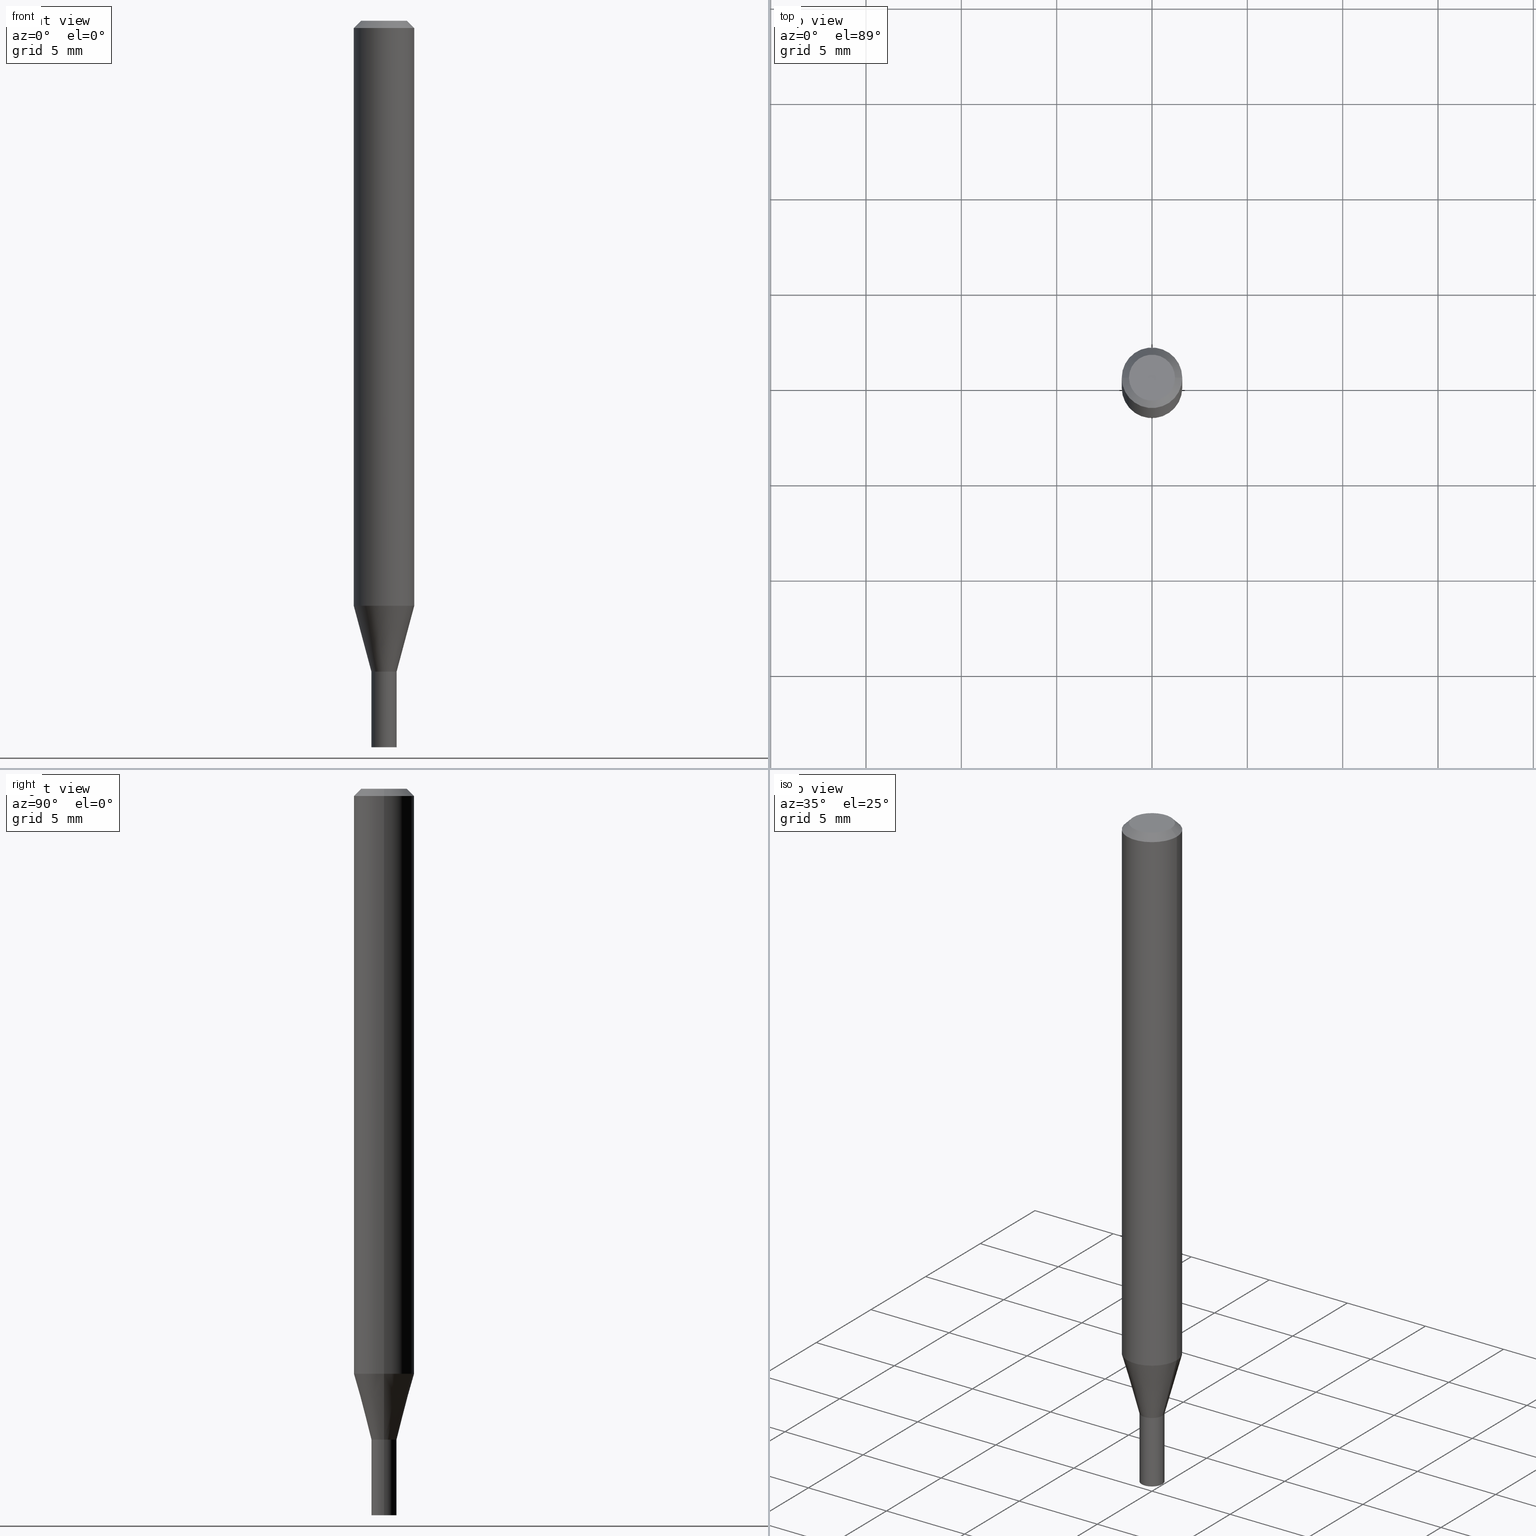
[diagram: canonical four-view strip — front | top / right | iso, engineering-drawing reading convention]
A machine part, canonical four-view strip (front | top / right | iso — engineering-drawing reading convention). The complete STEP part file that produces these views, byte-faithful:
ISO-10303-21;
HEADER;
FILE_DESCRIPTION (( 'STEP AP203' ),
    '1' );
FILE_NAME ('04158.STEP',
    '2024-03-14T17:08:30',
    ( '' ),
    ( '' ),
    'SwSTEP 2.0',
    'SolidWorks 2023',
    '' );
FILE_SCHEMA (( 'CONFIG_CONTROL_DESIGN' ));
ENDSEC;

DATA;
#1 = COORDINATED_UNIVERSAL_TIME_OFFSET ( 5, 0, .BEHIND. ) ;
#2 = LINE ( 'NONE', #234, #319 ) ;
#3 = CC_DESIGN_PERSON_AND_ORGANIZATION_ASSIGNMENT ( #401, #460, ( #240 ) ) ;
#4 = CIRCLE ( 'NONE', #91, 0.06250000000000000000 ) ;
#5 = DIRECTION ( 'NONE',  ( -2.445468806185136597E-29, 3.491481338843145583E-15, 1.000000000000000000 ) ) ;
#6 = UNCERTAINTY_MEASURE_WITH_UNIT (LENGTH_MEASURE( 1.000000000000000082E-05 ), #190, 'distance_accuracy_value', 'NONE');
#7 = FACE_OUTER_BOUND ( 'NONE', #82, .T. ) ;
#8 = EDGE_CURVE ( 'NONE', #414, #31, #24, .T. ) ;
#9 = DIRECTION ( 'NONE',  ( 1.000000000000000000, -6.982962677686279332E-15, 0.000000000000000000 ) ) ;
#10 = CIRCLE ( 'NONE', #270, 0.02549999999999999489 ) ;
#11 = CARTESIAN_POINT ( 'NONE',  ( 3.668203209277704895E-29, -5.237222008264718177E-15, -1.500000000000000222 ) ) ;
#12 = FACE_OUTER_BOUND ( 'NONE', #411, .T. ) ;
#13 = ORIENTED_EDGE ( 'NONE', *, *, #192, .T. ) ;
#14 = PRODUCT_RELATED_PRODUCT_CATEGORY ( 'detail', '', ( #160 ) ) ;
#15 = CARTESIAN_POINT ( 'NONE',  ( -0.02549999999999999489, -4.508713294612250460E-15, -1.343999999999999861 ) ) ;
#16 = ORIENTED_EDGE ( 'NONE', *, *, #218, .F. ) ;
#17 = ORIENTED_EDGE ( 'NONE', *, *, #107, .F. ) ;
#18 = AXIS2_PLACEMENT_3D ( 'NONE', #391, #312, #449 ) ;
#19 = EDGE_CURVE ( 'NONE', #162, #98, #398, .T. ) ;
#20 = DIRECTION ( 'NONE',  ( -0.7071067811869518049, 7.493145998871813553E-15, 0.7071067811861430075 ) ) ;
#21 = FACE_OUTER_BOUND ( 'NONE', #274, .T. ) ;
#22 = EDGE_CURVE ( 'NONE', #378, #51, #221, .T. ) ;
#23 = VECTOR ( 'NONE', #266, 39.37007874015748143 ) ;
#24 = LINE ( 'NONE', #280, #61 ) ;
#25 = APPROVAL_PERSON_ORGANIZATION ( #187, #134, #110 ) ;
#26 = ORIENTED_EDGE ( 'NONE', *, *, #141, .F. ) ;
#27 = DIRECTION ( 'NONE',  ( -2.445468806185136877E-29, 3.491481338843145188E-15, 1.000000000000000000 ) ) ;
#28 = ORIENTED_EDGE ( 'NONE', *, *, #351, .T. ) ;
#29 = CARTESIAN_POINT ( 'NONE',  ( 0.06250000000000000000, -4.888073874380388472E-16, -0.01499999999999999944 ) ) ;
#30 = APPLICATION_PROTOCOL_DEFINITION ( 'international standard', 'config_control_design', 1994, #237 ) ;
#31 = VERTEX_POINT ( 'NONE', #29 ) ;
#32 = ADVANCED_FACE ( 'NONE', ( #174 ), #242, .F. ) ;
#33 = AXIS2_PLACEMENT_3D ( 'NONE', #292, #150, #125 ) ;
#34 = EDGE_CURVE ( 'NONE', #122, #281, #92, .T. ) ;
#35 = CARTESIAN_POINT ( 'NONE',  ( 2.953588670608038575E-29, -4.216941839521379856E-15, -1.207780145523734916 ) ) ;
#36 = MANIFOLD_SOLID_BREP ( 'Body-Move/Copy2[2]', #462 ) ;
#37 = APPROVAL_ROLE ( '' ) ;
#38 = PERSON_AND_ORGANIZATION ( #435, #399 ) ;
#39 = CONICAL_SURFACE ( 'NONE', #143, 0.02549999999999999489, 0.7853981633980202659 ) ;
#40 = DIRECTION ( 'NONE',  ( 1.000000000000000000, -6.982962677686258822E-15, 0.000000000000000000 ) ) ;
#41 = CARTESIAN_POINT ( 'NONE',  ( 0.06250000000000000000, -4.811533449433679005E-16, -0.01499999999999999944 ) ) ;
#42 = EDGE_CURVE ( 'NONE', #375, #243, #363, .T. ) ;
#43 = DESIGN_CONTEXT ( 'detailed design', #53, 'design' ) ;
#44 = CARTESIAN_POINT ( 'NONE',  ( 3.668203209277704895E-29, -5.237222008264718177E-15, -1.500000000000000222 ) ) ;
#45 = CARTESIAN_POINT ( 'NONE',  ( 0.02599999999999999534, -5.418779037884561648E-15, -1.500000000000000222 ) ) ;
#46 = EDGE_LOOP ( 'NONE', ( #86, #97, #441, #410 ) ) ;
#47 = AXIS2_PLACEMENT_3D ( 'NONE', #376, #181, #397 ) ;
#48 = CYLINDRICAL_SURFACE ( 'NONE', #47, 0.06250000000000000000 ) ;
#49 = AXIS2_PLACEMENT_3D ( 'NONE', #294, #79, #50 ) ;
#50 = DIRECTION ( 'NONE',  ( 1.000000000000000000, -6.982962677686276966E-15, 0.000000000000000000 ) ) ;
#51 = VERTEX_POINT ( 'NONE', #358 ) ;
#52 = ORIENTED_EDGE ( 'NONE', *, *, #34, .F. ) ;
#53 = APPLICATION_CONTEXT ( 'configuration controlled 3d designs of mechanical parts and assemblies' ) ;
#54 = EDGE_CURVE ( 'NONE', #122, #443, #72, .T. ) ;
#55 = AXIS2_PLACEMENT_3D ( 'NONE', #11, #226, #341 ) ;
#56 = AXIS2_PLACEMENT_3D ( 'NONE', #339, #362, #9 ) ;
#57 = ADVANCED_FACE ( 'NONE', ( #131 ), #348, .T. ) ;
#58 = DIRECTION ( 'NONE',  ( -2.445468806185136597E-29, 3.491481338843145583E-15, 1.000000000000000000 ) ) ;
#59 = CARTESIAN_POINT ( 'NONE',  ( 3.285487341109732022E-29, -4.690805178735767049E-15, -1.343500000000000361 ) ) ;
#60 = ORIENTED_EDGE ( 'NONE', *, *, #416, .F. ) ;
#61 = VECTOR ( 'NONE', #27, 39.37007874015748143 ) ;
#62 = ORIENTED_EDGE ( 'NONE', *, *, #19, .F. ) ;
#63 = ORIENTED_EDGE ( 'NONE', *, *, #141, .T. ) ;
#64 = SECURITY_CLASSIFICATION_LEVEL ( 'unclassified' ) ;
#65 = DIRECTION ( 'NONE',  ( -1.000000000000000000, 6.982962677686265922E-15, -4.876176775795935793E-29 ) ) ;
#66 = DIRECTION ( 'NONE',  ( 2.445468806185136597E-29, -3.491481338843145583E-15, -1.000000000000000000 ) ) ;
#67 = SHAPE_DEFINITION_REPRESENTATION ( #124, #211 ) ;
#68 = ORIENTED_EDGE ( 'NONE', *, *, #456, .F. ) ;
#69 = APPROVAL_DATE_TIME ( #390, #134 ) ;
#70 = CC_DESIGN_PERSON_AND_ORGANIZATION_ASSIGNMENT ( #38, #320, ( #84 ) ) ;
#71 = DIRECTION ( 'NONE',  ( -2.445468806185136597E-29, 3.491481338843145583E-15, 1.000000000000000000 ) ) ;
#72 = CIRCLE ( 'NONE', #18, 0.02549999999999999489 ) ;
#73 = CONICAL_SURFACE ( 'NONE', #56, 0.02599999999999964145, 0.2617993877991496854 ) ;
#74 = APPROVAL_DATE_TIME ( #422, #370 ) ;
#75 = LINE ( 'NONE', #41, #374 ) ;
#76 = CARTESIAN_POINT ( 'NONE',  ( -0.02599999999999964145, -4.140331218889440579E-15, -1.344000000000000306 ) ) ;
#77 = AXIS2_PLACEMENT_3D ( 'NONE', #130, #93, #349 ) ;
#78 = DIRECTION ( 'NONE',  ( 1.000000000000000000, -6.982962677686265922E-15, 4.876176775795935793E-29 ) ) ;
#79 = DIRECTION ( 'NONE',  ( -2.445468806185136597E-29, 3.491481338843145583E-15, 1.000000000000000000 ) ) ;
#80 = DIRECTION ( 'NONE',  ( 1.000000000000000000, -6.982962677686280910E-15, 0.000000000000000000 ) ) ;
#81 = DIRECTION ( 'NONE',  ( -2.438088387897960049E-29, 3.491481338843145188E-15, 1.000000000000000000 ) ) ;
#82 = EDGE_LOOP ( 'NONE', ( #420, #445, #241, #106 ) ) ;
#83 = DIRECTION ( 'NONE',  ( 1.000000000000000000, -6.982962677686266711E-15, 0.000000000000000000 ) ) ;
#84 = PRODUCT_DEFINITION ( 'UNKNOWN', '', #240, #43 ) ;
#85 = DIRECTION ( 'NONE',  ( -1.000000000000000000, 6.982962677686266711E-15, 0.000000000000000000 ) ) ;
#86 = ORIENTED_EDGE ( 'NONE', *, *, #293, .F. ) ;
#87 = DIRECTION ( 'NONE',  ( -2.445468806185136597E-29, 3.491481338843145583E-15, 1.000000000000000000 ) ) ;
#88 = CC_DESIGN_APPROVAL ( #134, ( #231 ) ) ;
#89 = ORIENTED_EDGE ( 'NONE', *, *, #351, .F. ) ;
#90 = AXIS2_PLACEMENT_3D ( 'NONE', #276, #94, #65 ) ;
#91 = AXIS2_PLACEMENT_3D ( 'NONE', #161, #232, #302 ) ;
#92 = LINE ( 'NONE', #381, #413 ) ;
#93 = DIRECTION ( 'NONE',  ( -2.445468806185136597E-29, 3.491481338843145583E-15, 1.000000000000000000 ) ) ;
#94 = DIRECTION ( 'NONE',  ( 2.438088387897960049E-29, -3.491481338843145188E-15, -1.000000000000000000 ) ) ;
#95 = ORIENTED_EDGE ( 'NONE', *, *, #118, .F. ) ;
#96 = ADVANCED_FACE ( 'NONE', ( #21 ), #168, .F. ) ;
#97 = ORIENTED_EDGE ( 'NONE', *, *, #107, .T. ) ;
#98 = VERTEX_POINT ( 'NONE', #318 ) ;
#99 = CARTESIAN_POINT ( 'NONE',  ( -0.02599999999999999534, 1.847411112976260152E-16, -1.278923123466275386E-30 ) ) ;
#100 = APPROVAL_STATUS ( 'not_yet_approved' ) ;
#101 = AXIS2_PLACEMENT_3D ( 'NONE', #418, #58, #200 ) ;
#102 = DIRECTION ( 'NONE',  ( 0.7071067811869518049, -2.468850131086492060E-15, 0.7071067811861430075 ) ) ;
#103 = CC_DESIGN_APPROVAL ( #370, ( #240 ) ) ;
#104 = ORIENTED_EDGE ( 'NONE', *, *, #19, .T. ) ;
#105 = PERSON_AND_ORGANIZATION_ROLE ( 'design_owner' ) ;
#106 = ORIENTED_EDGE ( 'NONE', *, *, #22, .F. ) ;
#107 = EDGE_CURVE ( 'NONE', #443, #122, #10, .T. ) ;
#108 = COORDINATED_UNIVERSAL_TIME_OFFSET ( 5, 0, .BEHIND. ) ;
#109 = DIRECTION ( 'NONE',  ( 1.000000000000000000, -6.982962677686270655E-15, 0.000000000000000000 ) ) ;
#110 = APPROVAL_ROLE ( '' ) ;
#111 = CARTESIAN_POINT ( 'NONE',  ( 3.286710075512824263E-29, -4.692550919405188553E-15, -1.344000000000000306 ) ) ;
#112 = AXIS2_PLACEMENT_3D ( 'NONE', #35, #71, #109 ) ;
#113 = CONICAL_SURFACE ( 'NONE', #49, 0.02549999999999999489, 0.7853981633980202659 ) ;
#114 =( LENGTH_UNIT ( ) NAMED_UNIT ( * ) SI_UNIT ( $, .METRE. ) );
#115 = CIRCLE ( 'NONE', #290, 0.04749999999999999362 ) ;
#116 = AXIS2_PLACEMENT_3D ( 'NONE', #201, #132, #417 ) ;
#117 =( NAMED_UNIT ( * ) PLANE_ANGLE_UNIT ( ) SI_UNIT ( $, .RADIAN. ) );
#118 = EDGE_CURVE ( 'NONE', #343, #206, #419, .T. ) ;
#119 = DIRECTION ( 'NONE',  ( -2.445468806185136597E-29, 3.491481338843145583E-15, 1.000000000000000000 ) ) ;
#120 = EDGE_CURVE ( 'NONE', #281, #407, #387, .T. ) ;
#121 = LINE ( 'NONE', #263, #180 ) ;
#122 = VERTEX_POINT ( 'NONE', #466 ) ;
#123 = DIRECTION ( 'NONE',  ( 1.000000000000000000, -6.982962677686279332E-15, 0.000000000000000000 ) ) ;
#124 = PRODUCT_DEFINITION_SHAPE ( 'NONE', 'NONE',  #84 ) ;
#125 = DIRECTION ( 'NONE',  ( 1.000000000000000000, -6.982962677686279332E-15, 0.000000000000000000 ) ) ;
#126 = DIRECTION ( 'NONE',  ( 1.000000000000000000, -6.982962677686267499E-15, 4.852736867747366768E-29 ) ) ;
#127 = EDGE_LOOP ( 'NONE', ( #159, #197, #251, #303 ) ) ;
#128 = VERTEX_POINT ( 'NONE', #145 ) ;
#129 = ADVANCED_FACE ( 'NONE', ( #7 ), #335, .T. ) ;
#130 = CARTESIAN_POINT ( 'NONE',  ( 3.286710075512824263E-29, -4.692550919405188553E-15, -1.344000000000000306 ) ) ;
#131 = FACE_OUTER_BOUND ( 'NONE', #127, .T. ) ;
#132 = DIRECTION ( 'NONE',  ( 2.438088387897960049E-29, -3.491481338843145188E-15, -1.000000000000000000 ) ) ;
#133 = CARTESIAN_POINT ( 'NONE',  ( 3.286710075512824263E-29, -4.692550919405188553E-15, -1.344000000000000306 ) ) ;
#134 = APPROVAL ( #100, 'UNSPECIFIED' ) ;
#135 = DIRECTION ( 'NONE',  ( -2.445468806185136597E-29, 3.491481338843145583E-15, 1.000000000000000000 ) ) ;
#136 = VERTEX_POINT ( 'NONE', #45 ) ;
#137 = DIRECTION ( 'NONE',  ( -2.445468806185136877E-29, 3.491481338843145188E-15, 1.000000000000000000 ) ) ;
#138 = ORIENTED_EDGE ( 'NONE', *, *, #120, .F. ) ;
#139 = ORIENTED_EDGE ( 'NONE', *, *, #54, .T. ) ;
#140 = CALENDAR_DATE ( 2024, 14, 3 ) ;
#141 = EDGE_CURVE ( 'NONE', #98, #206, #432, .T. ) ;
#142 = CARTESIAN_POINT ( 'NONE',  ( -0.06250000000000000000, 4.440892098500626162E-16, -3.074334431409316114E-30 ) ) ;
#143 = AXIS2_PLACEMENT_3D ( 'NONE', #330, #158, #225 ) ;
#144 = APPROVAL_DATE_TIME ( #183, #153 ) ;
#145 = CARTESIAN_POINT ( 'NONE',  ( -0.02599999999999999534, -4.780145352537327941E-15, -1.500000000000000222 ) ) ;
#146 = PERSON_AND_ORGANIZATION ( #435, #399 ) ;
#147 = FACE_OUTER_BOUND ( 'NONE', #229, .T. ) ;
#148 = AXIS2_PLACEMENT_3D ( 'NONE', #171, #202, #214 ) ;
#149 = MECHANICAL_CONTEXT ( 'NONE', #237, 'mechanical' ) ;
#150 = DIRECTION ( 'NONE',  ( -2.445468806185136597E-29, 3.491481338843145583E-15, 1.000000000000000000 ) ) ;
#151 = CARTESIAN_POINT ( 'NONE',  ( -0.02600000000000019310, -4.506064067438139259E-15, -1.343500000000000361 ) ) ;
#152 = DIRECTION ( 'NONE',  ( 1.000000000000000000, -6.982962677686266711E-15, 4.876176775795935793E-29 ) ) ;
#153 = APPROVAL ( #209, 'UNSPECIFIED' ) ;
#154 = AXIS2_PLACEMENT_3D ( 'NONE', #423, #356, #277 ) ;
#155 = VECTOR ( 'NONE', #137, 39.37007874015748143 ) ;
#156 = CYLINDRICAL_SURFACE ( 'NONE', #379, 0.02599999999999991554 ) ;
#157 = CARTESIAN_POINT ( 'NONE',  ( -3.597438323505677396E-45, 5.136188506020282969E-31, 1.471062854863228050E-16 ) ) ;
#158 = DIRECTION ( 'NONE',  ( -2.445468806185136597E-29, 3.491481338843145583E-15, 1.000000000000000000 ) ) ;
#159 = ORIENTED_EDGE ( 'NONE', *, *, #456, .T. ) ;
#160 = PRODUCT ( '04158', '04158', '', ( #149 ) ) ;
#161 = CARTESIAN_POINT ( 'NONE',  ( 2.953588670608038575E-29, -4.216941839521379856E-15, -1.207780145523734916 ) ) ;
#162 = VERTEX_POINT ( 'NONE', #361 ) ;
#163 = DIMENSIONAL_EXPONENTS ( 1.000000000000000000, 0.000000000000000000, 0.000000000000000000, 0.000000000000000000, 0.000000000000000000, 0.000000000000000000, 0.000000000000000000 ) ;
#164 = ORIENTED_EDGE ( 'NONE', *, *, #337, .T. ) ;
#165 = CIRCLE ( 'NONE', #311, 0.02599999999999999534 ) ;
#166 = DIRECTION ( 'NONE',  ( -2.445468806185136597E-29, 3.491481338843145583E-15, 1.000000000000000000 ) ) ;
#167 = FACE_OUTER_BOUND ( 'NONE', #175, .T. ) ;
#168 = PLANE ( 'NONE',  #90 ) ;
#169 = EDGE_CURVE ( 'NONE', #128, #136, #256, .T. ) ;
#170 = CARTESIAN_POINT ( 'NONE',  ( -0.02549999999999999489, -4.511362521786361661E-15, -1.343999999999999861 ) ) ;
#171 = CARTESIAN_POINT ( 'NONE',  ( 3.576687321579069994E-29, -5.368277968210015545E-15, -1.500000000000000222 ) ) ;
#172 = ORIENTED_EDGE ( 'NONE', *, *, #8, .T. ) ;
#173 = CARTESIAN_POINT ( 'NONE',  ( 3.668203209277705088E-31, -5.237222008264718399E-17, -0.01499999999999999944 ) ) ;
#174 = FACE_OUTER_BOUND ( 'NONE', #313, .T. ) ;
#175 = EDGE_LOOP ( 'NONE', ( #164, #372 ) ) ;
#176 = PERSON_AND_ORGANIZATION_ROLE ( 'classification_officer' ) ;
#177 = CC_DESIGN_DATE_AND_TIME_ASSIGNMENT ( #426, #282, ( #84 ) ) ;
#178 = DIRECTION ( 'NONE',  ( 1.000000000000000000, -6.982962677686279332E-15, 0.000000000000000000 ) ) ;
#179 = APPLICATION_PROTOCOL_DEFINITION ( 'international standard', 'config_control_design', 1994, #53 ) ;
#180 = VECTOR ( 'NONE', #334, 39.37007874015748143 ) ;
#181 = DIRECTION ( 'NONE',  ( -2.445468806185136597E-29, 3.491481338843145583E-15, 1.000000000000000000 ) ) ;
#182 = EDGE_CURVE ( 'NONE', #98, #162, #115, .T. ) ;
#183 = DATE_AND_TIME ( #357, #322 ) ;
#184 = DIRECTION ( 'NONE',  ( 1.000000000000000000, -6.982962677686267499E-15, 4.876176775795935793E-29 ) ) ;
#185 = DIRECTION ( 'NONE',  ( 0.000000000000000000, 0.000000000000000000, 1.000000000000000000 ) ) ;
#186 = ADVANCED_FACE ( 'NONE', ( #444 ), #204, .T. ) ;
#187 = PERSON_AND_ORGANIZATION ( #435, #399 ) ;
#188 = DIRECTION ( 'NONE',  ( -2.445468806185136597E-29, 3.491481338843145583E-15, 1.000000000000000000 ) ) ;
#189 = EDGE_CURVE ( 'NONE', #243, #281, #230, .T. ) ;
#190 =( CONVERSION_BASED_UNIT ( 'INCH', #440 ) LENGTH_UNIT ( ) NAMED_UNIT ( #163 ) );
#191 = DIRECTION ( 'NONE',  ( -2.445468806185136597E-29, 3.491481338843145583E-15, 1.000000000000000000 ) ) ;
#192 = EDGE_CURVE ( 'NONE', #31, #206, #321, .T. ) ;
#193 = AXIS2_PLACEMENT_3D ( 'NONE', #430, #253, #400 ) ;
#194 = CARTESIAN_POINT ( 'NONE',  ( 0.000000000000000000, 0.000000000000000000, 0.000000000000000000 ) ) ;
#195 = ORIENTED_EDGE ( 'NONE', *, *, #189, .T. ) ;
#196 = CARTESIAN_POINT ( 'NONE',  ( 3.286710075512824263E-29, -4.692550919405188553E-15, -1.344000000000000306 ) ) ;
#197 = ORIENTED_EDGE ( 'NONE', *, *, #118, .T. ) ;
#198 = APPROVAL_PERSON_ORGANIZATION ( #258, #153, #37 ) ;
#199 = EDGE_CURVE ( 'NONE', #136, #51, #2, .T. ) ;
#200 = DIRECTION ( 'NONE',  ( 1.000000000000000000, -6.982962677686266711E-15, 4.876176775795935793E-29 ) ) ;
#201 = CARTESIAN_POINT ( 'NONE',  ( 1.815570296198757649E-16, 0.02599999999999530464, -1.344000000000000306 ) ) ;
#202 = DIRECTION ( 'NONE',  ( -2.438088387897960049E-29, 3.491481338843145188E-15, 1.000000000000000000 ) ) ;
#203 = EDGE_LOOP ( 'NONE', ( #139, #233, #138, #52 ) ) ;
#204 = CONICAL_SURFACE ( 'NONE', #215, 0.02599999999999964145, 0.2617993877991496854 ) ;
#205 = AXIS2_PLACEMENT_3D ( 'NONE', #235, #166, #347 ) ;
#206 = VERTEX_POINT ( 'NONE', #438 ) ;
#207 = ORIENTED_EDGE ( 'NONE', *, *, #287, .T. ) ;
#208 = LINE ( 'NONE', #170, #415 ) ;
#209 = APPROVAL_STATUS ( 'not_yet_approved' ) ;
#210 = ORIENTED_EDGE ( 'NONE', *, *, #416, .T. ) ;
#211 = ADVANCED_BREP_SHAPE_REPRESENTATION ( '04158', ( #333, #36, #360 ), #447 ) ;
#212 = APPROVAL_ROLE ( '' ) ;
#213 = ADVANCED_FACE ( 'NONE', ( #147 ), #48, .T. ) ;
#214 = DIRECTION ( 'NONE',  ( 1.000000000000000000, -6.982962677686265922E-15, 4.876176775795935793E-29 ) ) ;
#215 = AXIS2_PLACEMENT_3D ( 'NONE', #111, #442, #123 ) ;
#216 = CIRCLE ( 'NONE', #205, 0.06250000000000000000 ) ;
#217 = CARTESIAN_POINT ( 'NONE',  ( 0.02599999999999964145, -4.874107949025028868E-15, -1.344000000000000306 ) ) ;
#218 = EDGE_CURVE ( 'NONE', #343, #414, #310, .T. ) ;
#219 = DIRECTION ( 'NONE',  ( 0.7071067811865441310, -7.319954787623245001E-15, -0.7071067811865509034 ) ) ;
#220 = FACE_OUTER_BOUND ( 'NONE', #452, .T. ) ;
#221 = CIRCLE ( 'NONE', #154, 0.02599999999999999534 ) ;
#222 = CONICAL_SURFACE ( 'NONE', #329, 0.06250000000000000000, 0.7853981633974435050 ) ;
#223 = CC_DESIGN_PERSON_AND_ORGANIZATION_ASSIGNMENT ( #317, #176, ( #231 ) ) ;
#224 = DIRECTION ( 'NONE',  ( 1.000000000000000000, -6.982962677686266711E-15, 4.876176775795935793E-29 ) ) ;
#225 = DIRECTION ( 'NONE',  ( 1.000000000000000000, -6.982962677686276966E-15, 0.000000000000000000 ) ) ;
#226 = DIRECTION ( 'NONE',  ( -2.445468806185136597E-29, 3.491481338843145583E-15, 1.000000000000000000 ) ) ;
#227 = ADVANCED_FACE ( 'NONE', ( #289 ), #405, .F. ) ;
#228 = PLANE ( 'NONE',  #453 ) ;
#229 = EDGE_LOOP ( 'NONE', ( #95, #268, #172, #384 ) ) ;
#230 = LINE ( 'NONE', #286, #23 ) ;
#231 = SECURITY_CLASSIFICATION ( '', '', #64 ) ;
#232 = DIRECTION ( 'NONE',  ( -2.445468806185136597E-29, 3.491481338843145583E-15, 1.000000000000000000 ) ) ;
#233 = ORIENTED_EDGE ( 'NONE', *, *, #293, .T. ) ;
#234 = CARTESIAN_POINT ( 'NONE',  ( 0.02599999999999999534, -1.815570296198429286E-16, 1.267805961706943054E-30 ) ) ;
#235 = CARTESIAN_POINT ( 'NONE',  ( 3.668203209277705088E-31, -5.237222008264718399E-17, -0.01499999999999999944 ) ) ;
#236 = EDGE_LOOP ( 'NONE', ( #273, #245, #345, #385 ) ) ;
#237 = APPLICATION_CONTEXT ( 'configuration controlled 3d designs of mechanical parts and assemblies' ) ;
#238 = AXIS2_PLACEMENT_3D ( 'NONE', #257, #119, #152 ) ;
#239 = ADVANCED_FACE ( 'NONE', ( #295 ), #324, .T. ) ;
#240 = PRODUCT_DEFINITION_FORMATION_WITH_SPECIFIED_SOURCE ( 'ANY', '', #160, .NOT_KNOWN. ) ;
#241 = ORIENTED_EDGE ( 'NONE', *, *, #199, .T. ) ;
#242 = PLANE ( 'NONE',  #148 ) ;
#243 = VERTEX_POINT ( 'NONE', #217 ) ;
#244 = CARTESIAN_POINT ( 'NONE',  ( -3.597438323505677396E-45, 5.136188506020282969E-31, 1.471062854863228050E-16 ) ) ;
#245 = ORIENTED_EDGE ( 'NONE', *, *, #275, .T. ) ;
#246 = FACE_OUTER_BOUND ( 'NONE', #396, .T. ) ;
#247 = AXIS2_PLACEMENT_3D ( 'NONE', #59, #350, #80 ) ;
#248 = AXIS2_PLACEMENT_3D ( 'NONE', #366, #188, #332 ) ;
#249 = DIRECTION ( 'NONE',  ( -2.445468806185136597E-29, 3.491481338843145583E-15, 1.000000000000000000 ) ) ;
#250 = COORDINATED_UNIVERSAL_TIME_OFFSET ( 5, 0, .BEHIND. ) ;
#251 = ORIENTED_EDGE ( 'NONE', *, *, #192, .F. ) ;
#252 = CARTESIAN_POINT ( 'NONE',  ( 0.000000000000000000, 0.000000000000000000, 0.000000000000000000 ) ) ;
#253 = DIRECTION ( 'NONE',  ( -2.445468806185136597E-29, 3.491481338843145583E-15, 1.000000000000000000 ) ) ;
#254 = CALENDAR_DATE ( 2024, 14, 3 ) ;
#255 = EDGE_CURVE ( 'NONE', #162, #31, #75, .T. ) ;
#256 = CIRCLE ( 'NONE', #55, 0.02599999999999999534 ) ;
#257 = CARTESIAN_POINT ( 'NONE',  ( 0.000000000000000000, 0.000000000000000000, 0.000000000000000000 ) ) ;
#258 = PERSON_AND_ORGANIZATION ( #435, #399 ) ;
#259 = CC_DESIGN_PERSON_AND_ORGANIZATION_ASSIGNMENT ( #146, #105, ( #160 ) ) ;
#260 = VECTOR ( 'NONE', #326, 39.37007874015748143 ) ;
#261 = LOCAL_TIME ( 13, 8, 30.00000000000000000, #250 ) ;
#262 = EDGE_CURVE ( 'NONE', #407, #281, #380, .T. ) ;
#263 = CARTESIAN_POINT ( 'NONE',  ( -0.02599999999999964145, -4.507809808107564707E-15, -1.344000000000000306 ) ) ;
#264 =( NAMED_UNIT ( * ) SI_UNIT ( $, .STERADIAN. ) SOLID_ANGLE_UNIT ( ) );
#265 = ORIENTED_EDGE ( 'NONE', *, *, #337, .F. ) ;
#266 = DIRECTION ( 'NONE',  ( -2.445468806185136877E-29, 3.491481338843145188E-15, 1.000000000000000000 ) ) ;
#267 = DIRECTION ( 'NONE',  ( 2.445468806185136597E-29, -3.491481338843145583E-15, -1.000000000000000000 ) ) ;
#268 = ORIENTED_EDGE ( 'NONE', *, *, #218, .T. ) ;
#269 = ADVANCED_FACE ( 'NONE', ( #246 ), #222, .T. ) ;
#270 = AXIS2_PLACEMENT_3D ( 'NONE', #461, #383, #427 ) ;
#271 = LINE ( 'NONE', #297, #296 ) ;
#272 = ORIENTED_EDGE ( 'NONE', *, *, #344, .F. ) ;
#273 = ORIENTED_EDGE ( 'NONE', *, *, #42, .F. ) ;
#274 = EDGE_LOOP ( 'NONE', ( #459, #104 ) ) ;
#275 = EDGE_CURVE ( 'NONE', #375, #407, #464, .T. ) ;
#276 = CARTESIAN_POINT ( 'NONE',  ( 3.316907271900976096E-16, 0.04749999999999999362, -9.229222085188799396E-17 ) ) ;
#277 = DIRECTION ( 'NONE',  ( 1.000000000000000000, -6.982962677686258822E-15, 0.000000000000000000 ) ) ;
#278 = EDGE_LOOP ( 'NONE', ( #393, #17 ) ) ;
#279 = CARTESIAN_POINT ( 'NONE',  ( 0.02600000000000019310, -4.872362208355612098E-15, -1.343500000000000361 ) ) ;
#280 = CARTESIAN_POINT ( 'NONE',  ( 0.06250000000000000000, -4.364351673553916694E-16, 3.047610484872459871E-30 ) ) ;
#281 = VERTEX_POINT ( 'NONE', #279 ) ;
#282 = DATE_TIME_ROLE ( 'creation_date' ) ;
#283 = AXIS2_PLACEMENT_3D ( 'NONE', #368, #267, #85 ) ;
#284 = DIRECTION ( 'NONE',  ( -2.445468806185136877E-29, 3.491481338843145188E-15, 1.000000000000000000 ) ) ;
#285 = COORDINATED_UNIVERSAL_TIME_OFFSET ( 5, 0, .BEHIND. ) ;
#286 = CARTESIAN_POINT ( 'NONE',  ( 0.02599999999999991554, -1.815570296198423369E-16, 1.267805961706939200E-30 ) ) ;
#287 = EDGE_CURVE ( 'NONE', #128, #378, #421, .T. ) ;
#288 = PERSON_AND_ORGANIZATION ( #435, #399 ) ;
#289 = FACE_OUTER_BOUND ( 'NONE', #236, .T. ) ;
#290 = AXIS2_PLACEMENT_3D ( 'NONE', #157, #298, #126 ) ;
#291 = LOCAL_TIME ( 13, 8, 30.00000000000000000, #285 ) ;
#292 = CARTESIAN_POINT ( 'NONE',  ( 3.286710075512824263E-29, -4.692550919405188553E-15, -1.344000000000000306 ) ) ;
#293 = EDGE_CURVE ( 'NONE', #443, #407, #208, .T. ) ;
#294 = CARTESIAN_POINT ( 'NONE',  ( 3.286710075512823703E-29, -4.692550919405187764E-15, -1.343999999999999861 ) ) ;
#295 = FACE_OUTER_BOUND ( 'NONE', #424, .T. ) ;
#296 = VECTOR ( 'NONE', #331, 39.37007874015748143 ) ;
#297 = CARTESIAN_POINT ( 'NONE',  ( 0.02599999999999964145, -4.874107949025028868E-15, -1.344000000000000306 ) ) ;
#298 = DIRECTION ( 'NONE',  ( -2.445468806185136597E-29, 3.491481338843145583E-15, 1.000000000000000000 ) ) ;
#299 = CC_DESIGN_DATE_AND_TIME_ASSIGNMENT ( #392, #394, ( #231 ) ) ;
#300 = FACE_OUTER_BOUND ( 'NONE', #46, .T. ) ;
#301 = CARTESIAN_POINT ( 'NONE',  ( 0.000000000000000000, 0.000000000000000000, 0.000000000000000000 ) ) ;
#302 = DIRECTION ( 'NONE',  ( 1.000000000000000000, -6.982962677686270655E-15, 0.000000000000000000 ) ) ;
#303 = ORIENTED_EDGE ( 'NONE', *, *, #8, .F. ) ;
#304 = LOCAL_TIME ( 13, 8, 30.00000000000000000, #327 ) ;
#305 = ORIENTED_EDGE ( 'NONE', *, *, #255, .F. ) ;
#306 = ORIENTED_EDGE ( 'NONE', *, *, #182, .F. ) ;
#307 = EDGE_CURVE ( 'NONE', #206, #31, #216, .T. ) ;
#308 = PLANE ( 'NONE',  #116 ) ;
#309 = EDGE_LOOP ( 'NONE', ( #315, #60, #195, #406 ) ) ;
#310 = CIRCLE ( 'NONE', #112, 0.06250000000000000000 ) ;
#311 = AXIS2_PLACEMENT_3D ( 'NONE', #44, #5, #40 ) ;
#312 = DIRECTION ( 'NONE',  ( -2.445468806185136597E-29, 3.491481338843145583E-15, 1.000000000000000000 ) ) ;
#313 = EDGE_LOOP ( 'NONE', ( #412, #386 ) ) ;
#314 = DIRECTION ( 'NONE',  ( -1.000000000000000000, 6.982962677686266711E-15, 0.000000000000000000 ) ) ;
#315 = ORIENTED_EDGE ( 'NONE', *, *, #275, .F. ) ;
#316 = ORIENTED_EDGE ( 'NONE', *, *, #403, .T. ) ;
#317 = PERSON_AND_ORGANIZATION ( #435, #399 ) ;
#318 = CARTESIAN_POINT ( 'NONE',  ( -0.04749999999999999362, 3.578768372314212971E-16, 1.471062854863204137E-16 ) ) ;
#319 = VECTOR ( 'NONE', #373, 39.37007874015748143 ) ;
#320 = PERSON_AND_ORGANIZATION_ROLE ( 'creator' ) ;
#321 = CIRCLE ( 'NONE', #336, 0.06250000000000000000 ) ;
#322 = LOCAL_TIME ( 13, 8, 30.00000000000000000, #108 ) ;
#323 = ADVANCED_FACE ( 'NONE', ( #167 ), #308, .F. ) ;
#324 = CYLINDRICAL_SURFACE ( 'NONE', #193, 0.02599999999999999534 ) ;
#325 = APPROVAL_STATUS ( 'not_yet_approved' ) ;
#326 = DIRECTION ( 'NONE',  ( -0.7071067811865441310, 2.468850131082221167E-15, -0.7071067811865509034 ) ) ;
#327 = COORDINATED_UNIVERSAL_TIME_OFFSET ( 5, 0, .BEHIND. ) ;
#328 = VECTOR ( 'NONE', #284, 39.37007874015748143 ) ;
#329 = AXIS2_PLACEMENT_3D ( 'NONE', #173, #66, #314 ) ;
#330 = CARTESIAN_POINT ( 'NONE',  ( 3.286710075512823703E-29, -4.692550919405187764E-15, -1.343999999999999861 ) ) ;
#331 = DIRECTION ( 'NONE',  ( 0.2588190451025210170, 1.565188264969624531E-15, 0.9659258262890682012 ) ) ;
#332 = DIRECTION ( 'NONE',  ( 1.000000000000000000, -6.982962677686280910E-15, 0.000000000000000000 ) ) ;
#333 = MANIFOLD_SOLID_BREP ( 'Body-Move/Copy2[1]', #353 ) ;
#334 = DIRECTION ( 'NONE',  ( -0.2588190451025210170, 5.211531920934547886E-15, 0.9659258262890682012 ) ) ;
#335 = CYLINDRICAL_SURFACE ( 'NONE', #451, 0.02599999999999999534 ) ;
#336 = AXIS2_PLACEMENT_3D ( 'NONE', #408, #87, #83 ) ;
#337 = EDGE_CURVE ( 'NONE', #51, #378, #364, .T. ) ;
#338 = CIRCLE ( 'NONE', #33, 0.02599999999999964145 ) ;
#339 = CARTESIAN_POINT ( 'NONE',  ( 3.286710075512824263E-29, -4.692550919405188553E-15, -1.344000000000000306 ) ) ;
#340 = ORIENTED_EDGE ( 'NONE', *, *, #255, .T. ) ;
#341 = DIRECTION ( 'NONE',  ( 1.000000000000000000, -6.982962677686258822E-15, 0.000000000000000000 ) ) ;
#342 = DIRECTION ( 'NONE',  ( -2.445468806185136597E-29, 3.491481338843145583E-15, 1.000000000000000000 ) ) ;
#343 = VERTEX_POINT ( 'NONE', #377 ) ;
#344 = EDGE_CURVE ( 'NONE', #243, #414, #271, .T. ) ;
#345 = ORIENTED_EDGE ( 'NONE', *, *, #262, .T. ) ;
#346 = ADVANCED_FACE ( 'NONE', ( #409 ), #228, .F. ) ;
#347 = DIRECTION ( 'NONE',  ( 1.000000000000000000, -6.982962677686266711E-15, 0.000000000000000000 ) ) ;
#348 = CYLINDRICAL_SURFACE ( 'NONE', #101, 0.06250000000000000000 ) ;
#349 = DIRECTION ( 'NONE',  ( 1.000000000000000000, -6.982962677686258822E-15, 0.000000000000000000 ) ) ;
#350 = DIRECTION ( 'NONE',  ( -2.445468806185136597E-29, 3.491481338843145583E-15, 1.000000000000000000 ) ) ;
#351 = EDGE_CURVE ( 'NONE', #375, #343, #121, .T. ) ;
#352 = ORIENTED_EDGE ( 'NONE', *, *, #307, .T. ) ;
#353 = CLOSED_SHELL ( 'NONE', ( #239, #32, #129, #323 ) ) ;
#354 = CC_DESIGN_SECURITY_CLASSIFICATION ( #231, ( #240 ) ) ;
#355 = ORIENTED_EDGE ( 'NONE', *, *, #344, .T. ) ;
#356 = DIRECTION ( 'NONE',  ( -2.445468806185136597E-29, 3.491481338843145583E-15, 1.000000000000000000 ) ) ;
#357 = CALENDAR_DATE ( 2024, 14, 3 ) ;
#358 = CARTESIAN_POINT ( 'NONE',  ( 0.02599999999999999534, -4.874107949025031235E-15, -1.344000000000000306 ) ) ;
#359 = CALENDAR_DATE ( 2024, 14, 3 ) ;
#360 = AXIS2_PLACEMENT_3D ( 'NONE', #252, #185, #429 ) ;
#361 = CARTESIAN_POINT ( 'NONE',  ( 0.04749999999999999362, -4.035134999187575172E-16, 1.471062854863253934E-16 ) ) ;
#362 = DIRECTION ( 'NONE',  ( -2.445468806185136597E-29, 3.491481338843145583E-15, 1.000000000000000000 ) ) ;
#363 = CIRCLE ( 'NONE', #446, 0.02599999999999964145 ) ;
#364 = CIRCLE ( 'NONE', #77, 0.02599999999999999534 ) ;
#365 = FACE_OUTER_BOUND ( 'NONE', #203, .T. ) ;
#366 = CARTESIAN_POINT ( 'NONE',  ( 3.285487341109732022E-29, -4.690805178735767049E-15, -1.343500000000000361 ) ) ;
#367 = ADVANCED_FACE ( 'NONE', ( #300 ), #39, .T. ) ;
#368 = CARTESIAN_POINT ( 'NONE',  ( 3.668203209277705088E-31, -5.237222008264718399E-17, -0.01499999999999999944 ) ) ;
#369 = CARTESIAN_POINT ( 'NONE',  ( -0.06250000000000000000, 3.840629472727444916E-16, -0.01499999999999999944 ) ) ;
#370 = APPROVAL ( #325, 'UNSPECIFIED' ) ;
#371 = CARTESIAN_POINT ( 'NONE',  ( -0.02599999999999999534, -4.780145352537327941E-15, -1.344000000000000306 ) ) ;
#372 = ORIENTED_EDGE ( 'NONE', *, *, #22, .T. ) ;
#373 = DIRECTION ( 'NONE',  ( -2.445468806185136877E-29, 3.491481338843145188E-15, 1.000000000000000000 ) ) ;
#374 = VECTOR ( 'NONE', #219, 39.37007874015748143 ) ;
#375 = VERTEX_POINT ( 'NONE', #76 ) ;
#376 = CARTESIAN_POINT ( 'NONE',  ( 0.000000000000000000, 0.000000000000000000, 0.000000000000000000 ) ) ;
#377 = CARTESIAN_POINT ( 'NONE',  ( -0.06250000000000000000, -3.772852629671316451E-15, -1.207780145523734916 ) ) ;
#378 = VERTEX_POINT ( 'NONE', #371 ) ;
#379 = AXIS2_PLACEMENT_3D ( 'NONE', #194, #342, #224 ) ;
#380 = CIRCLE ( 'NONE', #248, 0.02600000000000019310 ) ;
#381 = CARTESIAN_POINT ( 'NONE',  ( 0.02549999999999999489, -4.870616467686187439E-15, -1.343999999999999861 ) ) ;
#382 = ADVANCED_FACE ( 'NONE', ( #220 ), #73, .T. ) ;
#383 = DIRECTION ( 'NONE',  ( -2.445468806185136597E-29, 3.491481338843145583E-15, 1.000000000000000000 ) ) ;
#384 = ORIENTED_EDGE ( 'NONE', *, *, #307, .F. ) ;
#385 = ORIENTED_EDGE ( 'NONE', *, *, #189, .F. ) ;
#386 = ORIENTED_EDGE ( 'NONE', *, *, #169, .F. ) ;
#387 = CIRCLE ( 'NONE', #247, 0.02600000000000019310 ) ;
#388 = VECTOR ( 'NONE', #389, 39.37007874015748143 ) ;
#389 = DIRECTION ( 'NONE',  ( -2.445468806185136877E-29, 3.491481338843145188E-15, 1.000000000000000000 ) ) ;
#390 = DATE_AND_TIME ( #254, #291 ) ;
#391 = CARTESIAN_POINT ( 'NONE',  ( 3.286710075512823703E-29, -4.692550919405187764E-15, -1.343999999999999861 ) ) ;
#392 = DATE_AND_TIME ( #431, #261 ) ;
#393 = ORIENTED_EDGE ( 'NONE', *, *, #54, .F. ) ;
#394 = DATE_TIME_ROLE ( 'classification_date' ) ;
#395 = ADVANCED_FACE ( 'NONE', ( #12 ), #425, .T. ) ;
#396 = EDGE_LOOP ( 'NONE', ( #62, #340, #13, #26 ) ) ;
#397 = DIRECTION ( 'NONE',  ( 1.000000000000000000, -6.982962677686266711E-15, 4.876176775795935793E-29 ) ) ;
#398 = CIRCLE ( 'NONE', #402, 0.04749999999999999362 ) ;
#399 = ORGANIZATION ( 'UNSPECIFIED', 'UNSPECIFIED', '' ) ;
#400 = DIRECTION ( 'NONE',  ( 1.000000000000000000, -6.982962677686267499E-15, 4.876176775795935793E-29 ) ) ;
#401 = PERSON_AND_ORGANIZATION ( #435, #399 ) ;
#402 = AXIS2_PLACEMENT_3D ( 'NONE', #244, #135, #458 ) ;
#403 = EDGE_CURVE ( 'NONE', #136, #128, #165, .T. ) ;
#404 = CARTESIAN_POINT ( 'NONE',  ( 0.06250000000000000000, -4.653377006876771526E-15, -1.207780145523734916 ) ) ;
#405 = CYLINDRICAL_SURFACE ( 'NONE', #238, 0.02599999999999991554 ) ;
#406 = ORIENTED_EDGE ( 'NONE', *, *, #120, .T. ) ;
#407 = VERTEX_POINT ( 'NONE', #151 ) ;
#408 = CARTESIAN_POINT ( 'NONE',  ( 3.668203209277705088E-31, -5.237222008264718399E-17, -0.01499999999999999944 ) ) ;
#409 = FACE_OUTER_BOUND ( 'NONE', #278, .T. ) ;
#410 = ORIENTED_EDGE ( 'NONE', *, *, #262, .F. ) ;
#411 = EDGE_LOOP ( 'NONE', ( #305, #306, #63, #352 ) ) ;
#412 = ORIENTED_EDGE ( 'NONE', *, *, #403, .F. ) ;
#413 = VECTOR ( 'NONE', #102, 39.37007874015748854 ) ;
#414 = VERTEX_POINT ( 'NONE', #404 ) ;
#415 = VECTOR ( 'NONE', #20, 39.37007874015748854 ) ;
#416 = EDGE_CURVE ( 'NONE', #243, #375, #338, .T. ) ;
#417 = DIRECTION ( 'NONE',  ( -1.000000000000000000, 6.982962677686265922E-15, -4.876176775795935793E-29 ) ) ;
#418 = CARTESIAN_POINT ( 'NONE',  ( 0.000000000000000000, 0.000000000000000000, 0.000000000000000000 ) ) ;
#419 = LINE ( 'NONE', #142, #328 ) ;
#420 = ORIENTED_EDGE ( 'NONE', *, *, #287, .F. ) ;
#421 = LINE ( 'NONE', #99, #388 ) ;
#422 = DATE_AND_TIME ( #359, #304 ) ;
#423 = CARTESIAN_POINT ( 'NONE',  ( 3.286710075512824263E-29, -4.692550919405188553E-15, -1.344000000000000306 ) ) ;
#424 = EDGE_LOOP ( 'NONE', ( #316, #207, #265, #455 ) ) ;
#425 = CONICAL_SURFACE ( 'NONE', #283, 0.06250000000000000000, 0.7853981633974435050 ) ;
#426 = DATE_AND_TIME ( #140, #463 ) ;
#427 = DIRECTION ( 'NONE',  ( 1.000000000000000000, -6.982962677686276966E-15, 0.000000000000000000 ) ) ;
#428 = ADVANCED_FACE ( 'NONE', ( #365 ), #113, .T. ) ;
#429 = DIRECTION ( 'NONE',  ( 1.000000000000000000, 0.000000000000000000, 0.000000000000000000 ) ) ;
#430 = CARTESIAN_POINT ( 'NONE',  ( 0.000000000000000000, 0.000000000000000000, 0.000000000000000000 ) ) ;
#431 = CALENDAR_DATE ( 2024, 14, 3 ) ;
#432 = LINE ( 'NONE', #369, #260 ) ;
#433 = PERSON_AND_ORGANIZATION ( #435, #399 ) ;
#434 = APPROVAL_PERSON_ORGANIZATION ( #433, #370, #212 ) ;
#435 = PERSON ( 'UNSPECIFIED', 'UNSPECIFIED', 'UNSPECIFIED', ('UNSPECIFIED'), ('UNSPECIFIED'), ('UNSPECIFIED') ) ;
#436 = FACE_OUTER_BOUND ( 'NONE', #309, .T. ) ;
#437 = ADVANCED_FACE ( 'NONE', ( #436 ), #156, .F. ) ;
#438 = CARTESIAN_POINT ( 'NONE',  ( -0.06250000000000000000, -1.690567819951950852E-15, -0.01499999999999999944 ) ) ;
#439 = CC_DESIGN_APPROVAL ( #153, ( #84 ) ) ;
#440 = LENGTH_MEASURE_WITH_UNIT ( LENGTH_MEASURE( 0.02539999999999999897 ), #114 );
#441 = ORIENTED_EDGE ( 'NONE', *, *, #34, .T. ) ;
#442 = DIRECTION ( 'NONE',  ( -2.445468806185136597E-29, 3.491481338843145583E-15, 1.000000000000000000 ) ) ;
#443 = VERTEX_POINT ( 'NONE', #15 ) ;
#444 = FACE_OUTER_BOUND ( 'NONE', #454, .T. ) ;
#445 = ORIENTED_EDGE ( 'NONE', *, *, #169, .T. ) ;
#446 = AXIS2_PLACEMENT_3D ( 'NONE', #133, #249, #178 ) ;
#447 =( GEOMETRIC_REPRESENTATION_CONTEXT ( 3 ) GLOBAL_UNCERTAINTY_ASSIGNED_CONTEXT ( ( #6 ) ) GLOBAL_UNIT_ASSIGNED_CONTEXT ( ( #190, #117, #264 ) ) REPRESENTATION_CONTEXT ( 'NONE', 'WORKASPACE' ) );
#448 = ORIENTED_EDGE ( 'NONE', *, *, #42, .T. ) ;
#449 = DIRECTION ( 'NONE',  ( 1.000000000000000000, -6.982962677686276966E-15, 0.000000000000000000 ) ) ;
#450 = CC_DESIGN_PERSON_AND_ORGANIZATION_ASSIGNMENT ( #288, #465, ( #240 ) ) ;
#451 = AXIS2_PLACEMENT_3D ( 'NONE', #301, #191, #184 ) ;
#452 = EDGE_LOOP ( 'NONE', ( #89, #448, #355, #16 ) ) ;
#453 = AXIS2_PLACEMENT_3D ( 'NONE', #196, #81, #78 ) ;
#454 = EDGE_LOOP ( 'NONE', ( #210, #28, #68, #272 ) ) ;
#455 = ORIENTED_EDGE ( 'NONE', *, *, #199, .F. ) ;
#456 = EDGE_CURVE ( 'NONE', #414, #343, #4, .T. ) ;
#457 = CARTESIAN_POINT ( 'NONE',  ( -0.02599999999999991554, 1.847411112976254482E-16, -1.278923123466271357E-30 ) ) ;
#458 = DIRECTION ( 'NONE',  ( 1.000000000000000000, -6.982962677686267499E-15, 4.852736867747366768E-29 ) ) ;
#459 = ORIENTED_EDGE ( 'NONE', *, *, #182, .T. ) ;
#460 = PERSON_AND_ORGANIZATION_ROLE ( 'design_supplier' ) ;
#461 = CARTESIAN_POINT ( 'NONE',  ( 3.286710075512823703E-29, -4.692550919405187764E-15, -1.343999999999999861 ) ) ;
#462 = CLOSED_SHELL ( 'NONE', ( #227, #428, #269, #57, #186, #382, #213, #395, #96, #346, #367, #437 ) ) ;
#463 = LOCAL_TIME ( 13, 8, 30.00000000000000000, #1 ) ;
#464 = LINE ( 'NONE', #457, #155 ) ;
#465 = PERSON_AND_ORGANIZATION_ROLE ( 'creator' ) ;
#466 = CARTESIAN_POINT ( 'NONE',  ( 0.02549999999999999489, -4.870616467686187439E-15, -1.343999999999999861 ) ) ;
ENDSEC;
END-ISO-10303-21;
